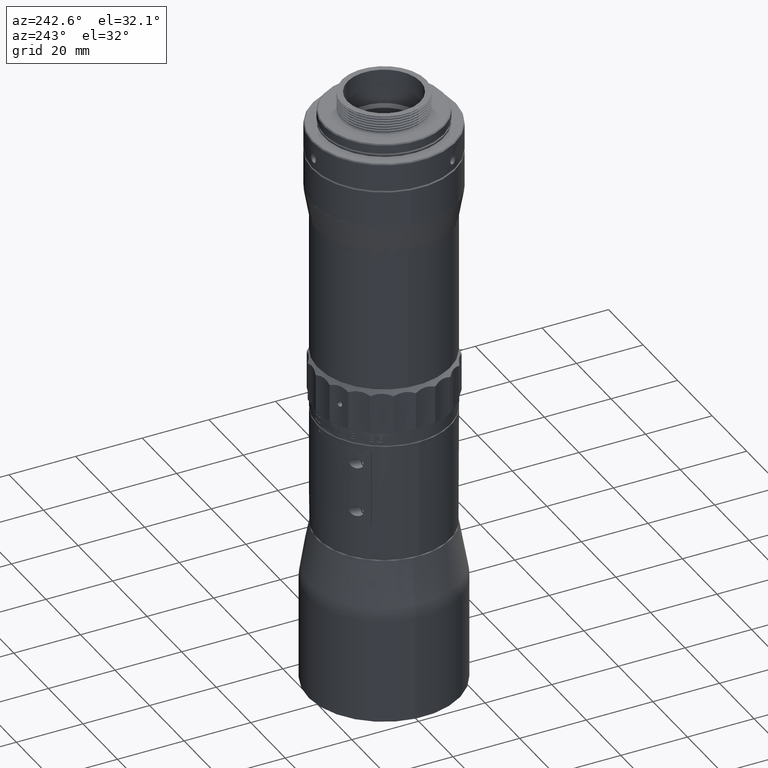
[diagram: clean part render]
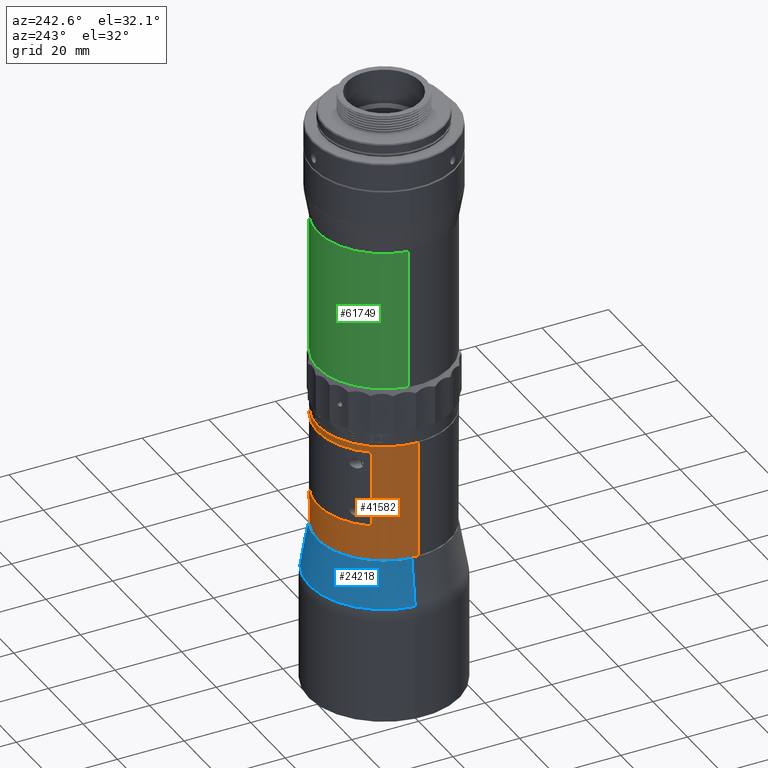
[diagram: same view with three faces highlighted in distinct colors, each labeled with its STEP entity id]
A machine part, auxiliary view with three faces highlighted in distinct colors.
Their STEP definitions:

[orange] entity #41582 — the highlighted cylindrical surface (partial cylindrical patch) has radius 20 mm, axis along (-0, 0, -1).
#59 = CARTESIAN_POINT ( 'NONE',  ( -1.693854720930704900, 19.92835645255080100, -5.111236852984245800 ) ) ;
#332 = VERTEX_POINT ( 'NONE', #14159 ) ;
#541 = CARTESIAN_POINT ( 'NONE',  ( -0.7498242311347396200, 19.98593964309368300, -4.850000012531379100 ) ) ;
#1493 = LINE ( 'NONE', #9531, #23202 ) ;
#1539 = CARTESIAN_POINT ( 'NONE',  ( -16.00000061859313000, 11.99999999999999500, -29.10000000000000900 ) ) ;
#1900 = AXIS2_PLACEMENT_3D ( 'NONE', #44524, #61881, #11641 ) ;
#2197 = EDGE_LOOP ( 'NONE', ( #62819, #57751 ) ) ;
#2491 = ORIENTED_EDGE ( 'NONE', *, *, #37364, .T. ) ;
#2825 = CARTESIAN_POINT ( 'NONE',  ( -0.7499561874927938000, 19.98593469240952200, -4.717937502177353100 ) ) ;
#3497 = CARTESIAN_POINT ( 'NONE',  ( -1.409484263373525200E-015, -6.757842006322049400E-015, -39.60000021226375800 ) ) ;
#4317 = AXIS2_PLACEMENT_3D ( 'NONE', #42693, #48290, #54627 ) ;
#5329 = CARTESIAN_POINT ( 'NONE',  ( -5.099319591400049300E-015, 20.00000049487447400, -4.000000212262516900 ) ) ;
#5958 = VERTEX_POINT ( 'NONE', #1539 ) ;
#6475 = CIRCLE ( 'NONE', #13902, 20.00000049487450900 ) ;
#7788 = ORIENTED_EDGE ( 'NONE', *, *, #41167, .T. ) ;
#8035 = EDGE_CURVE ( 'NONE', #54137, #5958, #40390, .T. ) ;
#8104 = ORIENTED_EDGE ( 'NONE', *, *, #13854, .T. ) ;
#8396 = CARTESIAN_POINT ( 'NONE',  ( -1.694569195880832900, 19.92830022729013000, -4.589388296515989100 ) ) ;
#9531 = CARTESIAN_POINT ( 'NONE',  ( 20.00000049487450900, -2.869408114835106900E-015, -47.03811146431482400 ) ) ;
#10291 = DIRECTION ( 'NONE',  ( 4.135874887446143800E-018, -6.905169299956518100E-018, 1.000000000000000000 ) ) ;
#10583 = DIRECTION ( 'NONE',  ( -4.135874887446143800E-018, 6.905169299956518100E-018, -1.000000000000000000 ) ) ;
#11048 = DIRECTION ( 'NONE',  ( -4.135874887446143800E-018, 6.905169299956518100E-018, -1.000000000000000000 ) ) ;
#11641 = DIRECTION ( 'NONE',  ( -1.000000000000000000, -6.938893903907227100E-017, 0.0000000000000000000 ) ) ;
#11921 = CARTESIAN_POINT ( 'NONE',  ( -1.747899330876771200, 19.92347529276806000, -4.982047906286560100 ) ) ;
#13854 = EDGE_CURVE ( 'NONE', #332, #54137, #42722, .T. ) ;
#13902 = AXIS2_PLACEMENT_3D ( 'NONE', #3497, #64463, #30994 ) ;
#14159 = CARTESIAN_POINT ( 'NONE',  ( 16.00000061859313000, 11.99999999999999800, -5.900000000000011000 ) ) ;
#14174 = LINE ( 'NONE', #26807, #66618 ) ;
#16456 = CARTESIAN_POINT ( 'NONE',  ( -20.00000049487450900, -5.696327162542956800E-015, -39.60000021226375800 ) ) ;
#17716 = EDGE_CURVE ( 'NONE', #34828, #66939, #44841, .T. ) ;
#18023 = CARTESIAN_POINT ( 'NONE',  ( -20.00000049487450600, -8.268532834981542800E-015, -4.000000212262516900 ) ) ;
#18378 = VERTEX_POINT ( 'NONE', #5329 ) ;
#19442 = CARTESIAN_POINT ( 'NONE',  ( -0.7498242311347396200, 19.98593964309368300, -4.850000012531379100 ) ) ;
#19588 = VERTEX_POINT ( 'NONE', #53904 ) ;
#19776 = CARTESIAN_POINT ( 'NONE',  ( -1.747767781886162600, 19.92348683277054300, -4.850000000000010300 ) ) ;
#20221 = EDGE_CURVE ( 'NONE', #5958, #48755, #39292, .T. ) ;
#20887 = VERTEX_POINT ( 'NONE', #43485 ) ;
#21495 = DIRECTION ( 'NONE',  ( -1.000000000000000000, -6.938893903907230800E-017, 0.0000000000000000000 ) ) ;
#23202 = VECTOR ( 'NONE', #25595, 1000.000000000000000 ) ;
#23468 = DIRECTION ( 'NONE',  ( 4.135874887446143800E-018, -6.905169299956518100E-018, 1.000000000000000000 ) ) ;
#23705 = FACE_BOUND ( 'NONE', #32760, .T. ) ;
#23852 = AXIS2_PLACEMENT_3D ( 'NONE', #54057, #71429, #37945 ) ;
#24589 = B_SPLINE_CURVE_WITH_KNOTS ( 'NONE', 3,
 ( #39697, #11921, #59, #28719, #61921, #34063, #33828, #33340, #51148, #541 ),
 .UNSPECIFIED., .F., .F.,
 ( 4, 2, 2, 2, 4 ),
 ( 0.001562280362684583000, 0.001952595708463785100, 0.002342911054242987300, 0.002733226400022189500, 0.003123541745801391600 ),
 .UNSPECIFIED. ) ;
#24702 = CARTESIAN_POINT ( 'NONE',  ( -1.379193945795173200, 19.95281591035591600, -4.349964031905881400 ) ) ;
#25595 = DIRECTION ( 'NONE',  ( -4.135874887446143800E-018, 6.905169299956518100E-018, -1.000000000000000000 ) ) ;
#26807 = CARTESIAN_POINT ( 'NONE',  ( 16.00000061859313400, 11.99999999999999600, -47.03811146431482400 ) ) ;
#28566 = ORIENTED_EDGE ( 'NONE', *, *, #69677, .T. ) ;
#28719 = CARTESIAN_POINT ( 'NONE',  ( -1.509894972231268200, 19.94313796493352700, -5.295791751168656500 ) ) ;
#30772 = CARTESIAN_POINT ( 'NONE',  ( -0.8038845290828606800, 19.98405147426788600, -4.588797971043480800 ) ) ;
#30994 = DIRECTION ( 'NONE',  ( -1.000000000000000000, -6.938893903907230800E-017, 0.0000000000000000000 ) ) ;
#32760 = EDGE_LOOP ( 'NONE', ( #7788, #8104, #45471, #45002 ) ) ;
#33340 = CARTESIAN_POINT ( 'NONE',  ( -0.8031044210231795800, 19.98408764845028100, -5.110513237011595300 ) ) ;
#33828 = CARTESIAN_POINT ( 'NONE',  ( -0.9896364460323023900, 19.97571914992536100, -5.297041730023716300 ) ) ;
#34063 = CARTESIAN_POINT ( 'NONE',  ( -1.119166750739387000, 19.96908899319594300, -5.350043263400346300 ) ) ;
#34828 = VERTEX_POINT ( 'NONE', #19442 ) ;
#35111 = EDGE_CURVE ( 'NONE', #18378, #20887, #71901, .T. ) ;
#36069 = VECTOR ( 'NONE', #11048, 1000.000000000000000 ) ;
#37364 = EDGE_CURVE ( 'NONE', #53339, #18378, #42836, .T. ) ;
#37945 = DIRECTION ( 'NONE',  ( -1.000000000000000000, -6.938893903907227100E-017, 0.0000000000000000000 ) ) ;
#38109 = AXIS2_PLACEMENT_3D ( 'NONE', #38334, #10583, #21495 ) ;
#38334 = CARTESIAN_POINT ( 'NONE',  ( -1.262247117380437400E-015, -7.003666033400510000E-015, -4.000000212262516900 ) ) ;
#39292 = CIRCLE ( 'NONE', #23852, 20.00000049487450900 ) ;
#39374 = FACE_BOUND ( 'NONE', #2197, .T. ) ;
#39538 = CARTESIAN_POINT ( 'NONE',  ( -16.00000061859313000, 11.99999999999999500, -47.03811146431482400 ) ) ;
#39697 = CARTESIAN_POINT ( 'NONE',  ( -1.747767781886162600, 19.92348683277054300, -4.850000000000010300 ) ) ;
#40390 = LINE ( 'NONE', #39538, #36069 ) ;
#40701 = CARTESIAN_POINT ( 'NONE',  ( -1.747767781886162600, 19.92348683277054300, -4.850000000000010300 ) ) ;
#41053 = EDGE_CURVE ( 'NONE', #19588, #70336, #6475, .T. ) ;
#41167 = EDGE_CURVE ( 'NONE', #48755, #332, #14174, .T. ) ;
#41347 = AXIS2_PLACEMENT_3D ( 'NONE', #51730, #23468, #62765 ) ;
#41582 = ADVANCED_FACE ( 'NONE', ( #39374, #23705, #66479 ), #48947, .T. ) ;
#41762 = CARTESIAN_POINT ( 'NONE',  ( -1.118790222222688400, 19.96910982320768100, -4.350036002731930500 ) ) ;
#41823 = CARTESIAN_POINT ( 'NONE',  ( -20.00000049487450900, -8.094259403974986500E-015, -47.03811146431482400 ) ) ;
#42693 = CARTESIAN_POINT ( 'NONE',  ( -1.262247117380437400E-015, -7.003666033400510000E-015, -4.000000212262516900 ) ) ;
#42722 = CIRCLE ( 'NONE', #41347, 20.00000049487450900 ) ;
#42836 = CIRCLE ( 'NONE', #4317, 20.00000049487450900 ) ;
#43485 = CARTESIAN_POINT ( 'NONE',  ( 20.00000049487450600, -3.043681545841662400E-015, -4.000000212262516900 ) ) ;
#44185 = LINE ( 'NONE', #41823, #72197 ) ;
#44524 = CARTESIAN_POINT ( 'NONE',  ( -1.440247360910913800E-015, -6.706480588854724600E-015, -47.03811146431482400 ) ) ;
#44841 = B_SPLINE_CURVE_WITH_KNOTS ( 'NONE', 3,
 ( #52956, #2825, #30772, #58838, #41762, #24702, #70078, #8396, #69835, #19776 ),
 .UNSPECIFIED., .F., .F.,
 ( 4, 2, 2, 2, 4 ),
 ( 0.0000000000000000000, 0.0003905700906711457400, 0.0007811401813422914900, 0.001171710272013437200, 0.001562280362684583000 ),
 .UNSPECIFIED. ) ;
#45002 = ORIENTED_EDGE ( 'NONE', *, *, #20221, .T. ) ;
#45471 = ORIENTED_EDGE ( 'NONE', *, *, #8035, .T. ) ;
#48290 = DIRECTION ( 'NONE',  ( -4.135874887446143800E-018, 6.905169299956518100E-018, -1.000000000000000000 ) ) ;
#48755 = VERTEX_POINT ( 'NONE', #52558 ) ;
#48947 = CYLINDRICAL_SURFACE ( 'NONE', #1900, 20.00000049487450900 ) ;
#50042 = ORIENTED_EDGE ( 'NONE', *, *, #35111, .T. ) ;
#51148 = CARTESIAN_POINT ( 'NONE',  ( -0.7496923608437167100, 19.98594459054881200, -4.981976386617589900 ) ) ;
#51730 = CARTESIAN_POINT ( 'NONE',  ( -1.270105278788693900E-015, -6.990546213196301000E-015, -5.900000000000009200 ) ) ;
#52558 = CARTESIAN_POINT ( 'NONE',  ( 16.00000061859313000, 11.99999999999999800, -29.10000000000000900 ) ) ;
#52956 = CARTESIAN_POINT ( 'NONE',  ( -0.7498242311347396200, 19.98593964309368300, -4.850000012531379100 ) ) ;
#53254 = DIRECTION ( 'NONE',  ( -4.135874887446143800E-018, 6.905169299956518100E-018, -1.000000000000000000 ) ) ;
#53339 = VERTEX_POINT ( 'NONE', #18023 ) ;
#53904 = CARTESIAN_POINT ( 'NONE',  ( 20.00000049487450900, -5.370063191201786700E-015, -39.60000021226375800 ) ) ;
#54057 = CARTESIAN_POINT ( 'NONE',  ( -1.366057576177444500E-015, -6.830346285437309900E-015, -29.10000000000000900 ) ) ;
#54110 = EDGE_CURVE ( 'NONE', #53339, #70336, #44185, .T. ) ;
#54137 = VERTEX_POINT ( 'NONE', #69417 ) ;
#54627 = DIRECTION ( 'NONE',  ( -1.000000000000000000, -6.938893903907230800E-017, 0.0000000000000000000 ) ) ;
#55661 = ORIENTED_EDGE ( 'NONE', *, *, #54110, .F. ) ;
#56411 = EDGE_LOOP ( 'NONE', ( #50042, #28566, #57693, #55661, #2491 ) ) ;
#57693 = ORIENTED_EDGE ( 'NONE', *, *, #41053, .T. ) ;
#57751 = ORIENTED_EDGE ( 'NONE', *, *, #17716, .T. ) ;
#58838 = CARTESIAN_POINT ( 'NONE',  ( -0.9883486731605926100, 19.97577809654855600, -4.404155045146261200 ) ) ;
#61881 = DIRECTION ( 'NONE',  ( -4.135874887446143800E-018, 6.905169299956518100E-018, -1.000000000000000000 ) ) ;
#61921 = CARTESIAN_POINT ( 'NONE',  ( -1.379652297329628600, 19.95278449170975300, -5.349956684417697300 ) ) ;
#62765 = DIRECTION ( 'NONE',  ( -1.000000000000000000, -6.938893903907230800E-017, 0.0000000000000000000 ) ) ;
#62819 = ORIENTED_EDGE ( 'NONE', *, *, #69863, .T. ) ;
#64463 = DIRECTION ( 'NONE',  ( 4.135874887446143800E-018, -6.905169299956518100E-018, 1.000000000000000000 ) ) ;
#66479 = FACE_OUTER_BOUND ( 'NONE', #56411, .T. ) ;
#66618 = VECTOR ( 'NONE', #10291, 1000.000000000000000 ) ;
#66939 = VERTEX_POINT ( 'NONE', #40701 ) ;
#69417 = CARTESIAN_POINT ( 'NONE',  ( -16.00000061859313000, 11.99999999999999500, -5.900000000000007500 ) ) ;
#69677 = EDGE_CURVE ( 'NONE', #20887, #19588, #1493, .T. ) ;
#69835 = CARTESIAN_POINT ( 'NONE',  ( -1.747636147038224200, 19.92349838030477100, -4.717865910759136300 ) ) ;
#69863 = EDGE_CURVE ( 'NONE', #66939, #34828, #24589, .T. ) ;
#70078 = CARTESIAN_POINT ( 'NONE',  ( -1.508675104285780200, 19.94323479624979000, -4.403076250609643700 ) ) ;
#70336 = VERTEX_POINT ( 'NONE', #16456 ) ;
#71429 = DIRECTION ( 'NONE',  ( -4.135874887446143800E-018, 6.905169299956518100E-018, -1.000000000000000000 ) ) ;
#71901 = CIRCLE ( 'NONE', #38109, 20.00000049487450900 ) ;
#72197 = VECTOR ( 'NONE', #53254, 1000.000000000000000 ) ;

[blue] entity #24218 — the highlighted conical surface has half-angle 10 deg.
#285 = EDGE_CURVE ( 'NONE', #22764, #52756, #15898, .T. ) ;
#2787 = DIRECTION ( 'NONE',  ( 0.1728042079939963700, -0.01709957036338140600, -0.9848077530122088000 ) ) ;
#3686 = AXIS2_PLACEMENT_3D ( 'NONE', #69124, #30269, #41280 ) ;
#6852 = CARTESIAN_POINT ( 'NONE',  ( 19.92409916116097400, -1.971558097387873000, -39.92353265560238600 ) ) ;
#7185 = EDGE_CURVE ( 'NONE', #15161, #55353, #53434, .T. ) ;
#7435 = CARTESIAN_POINT ( 'NONE',  ( 22.33705996239634600, -2.210328862774783700, -53.67494838995591500 ) ) ;
#8995 = VECTOR ( 'NONE', #11486, 999.9999999999998900 ) ;
#11051 = ORIENTED_EDGE ( 'NONE', *, *, #7185, .F. ) ;
#11486 = DIRECTION ( 'NONE',  ( -0.1728042079939963700, 0.01709957036338142700, -0.9848077530122088000 ) ) ;
#13776 = FACE_OUTER_BOUND ( 'NONE', #59267, .T. ) ;
#15161 = VERTEX_POINT ( 'NONE', #21081 ) ;
#15674 = CIRCLE ( 'NONE', #3686, 22.44615337747885100 ) ;
#15898 = LINE ( 'NONE', #47101, #28992 ) ;
#18363 = CARTESIAN_POINT ( 'NONE',  ( -1.293462368969014900E-015, -6.939643994514333200E-015, -53.67494838995592200 ) ) ;
#21081 = CARTESIAN_POINT ( 'NONE',  ( -19.92409916116097400, 1.971558097387861300, -39.92353265560238600 ) ) ;
#22764 = VERTEX_POINT ( 'NONE', #6852 ) ;
#24218 = ADVANCED_FACE ( 'NONE', ( #13776 ), #39007, .T. ) ;
#24949 = CIRCLE ( 'NONE', #60016, 20.02140776057346000 ) ;
#26794 = CARTESIAN_POINT ( 'NONE',  ( -1.269723405529065800E-015, -6.941993046544994400E-015, -39.92353265560238600 ) ) ;
#28992 = VECTOR ( 'NONE', #2787, 999.9999999999998900 ) ;
#30269 = DIRECTION ( 'NONE',  ( 1.762893389404781200E-019, 1.939786222132960500E-017, -1.000000000000000000 ) ) ;
#34381 = CARTESIAN_POINT ( 'NONE',  ( -22.33705996239634600, 2.210328862774772100, -53.67494838995591500 ) ) ;
#39007 = CONICAL_SURFACE ( 'NONE', #68684, 22.44615337747884700, 0.1745329251994293700 ) ;
#39906 = EDGE_CURVE ( 'NONE', #15161, #22764, #24949, .T. ) ;
#41280 = DIRECTION ( 'NONE',  ( -0.09847250108308061600, -0.9951397723588595300, 0.0000000000000000000 ) ) ;
#44861 = CARTESIAN_POINT ( 'NONE',  ( -22.33705996239634600, 2.210328862774772100, -53.67494838995592200 ) ) ;
#47101 = CARTESIAN_POINT ( 'NONE',  ( 22.33705996239634600, -2.210328862774783700, -53.67494838995592200 ) ) ;
#50203 = ORIENTED_EDGE ( 'NONE', *, *, #285, .T. ) ;
#51281 = DIRECTION ( 'NONE',  ( -0.9951397723588595300, 0.09847250108308061600, 0.0000000000000000000 ) ) ;
#52756 = VERTEX_POINT ( 'NONE', #7435 ) ;
#52807 = EDGE_CURVE ( 'NONE', #55353, #52756, #15674, .T. ) ;
#53127 = ORIENTED_EDGE ( 'NONE', *, *, #52807, .F. ) ;
#53434 = LINE ( 'NONE', #44861, #8995 ) ;
#55353 = VERTEX_POINT ( 'NONE', #34381 ) ;
#59267 = EDGE_LOOP ( 'NONE', ( #62223, #50203, #53127, #11051 ) ) ;
#60016 = AXIS2_PLACEMENT_3D ( 'NONE', #26794, #65879, #66350 ) ;
#62223 = ORIENTED_EDGE ( 'NONE', *, *, #39906, .T. ) ;
#63507 = DIRECTION ( 'NONE',  ( -1.726292324989129000E-018, 1.708225593669714600E-019, -1.000000000000000000 ) ) ;
#65879 = DIRECTION ( 'NONE',  ( -1.726292324989129000E-018, 1.708225593669714600E-019, -1.000000000000000000 ) ) ;
#66350 = DIRECTION ( 'NONE',  ( -0.9951397723588596400, 0.09847250108308061600, 3.465737268271130800E-016 ) ) ;
#68684 = AXIS2_PLACEMENT_3D ( 'NONE', #18363, #63507, #51281 ) ;
#69124 = CARTESIAN_POINT ( 'NONE',  ( -1.158118760626007700E-015, -5.571893545248774400E-015, -53.67494838995591500 ) ) ;

[green] entity #61749 — the highlighted cylindrical surface (partial cylindrical patch) has radius 20 mm, axis along (0, 0, -1).
#803 = ORIENTED_EDGE ( 'NONE', *, *, #57874, .T. ) ;
#1838 = LINE ( 'NONE', #47266, #28829 ) ;
#1876 = VERTEX_POINT ( 'NONE', #9558 ) ;
#2134 = AXIS2_PLACEMENT_3D ( 'NONE', #53525, #43049, #36717 ) ;
#3854 = CARTESIAN_POINT ( 'NONE',  ( -19.79024498440231000, 2.888978934678416700, 56.79137777852483300 ) ) ;
#9558 = CARTESIAN_POINT ( 'NONE',  ( 19.79024498440206200, -2.888978934678422500, 14.29999929252512200 ) ) ;
#10077 = DIRECTION ( 'NONE',  ( -3.967215546937156200E-018, -2.717644169619216600E-017, 1.000000000000000000 ) ) ;
#12349 = FACE_OUTER_BOUND ( 'NONE', #31835, .T. ) ;
#15275 = VERTEX_POINT ( 'NONE', #55254 ) ;
#19949 = CARTESIAN_POINT ( 'NONE',  ( -19.79024498440231000, 2.888978934678418000, -7.500000550267560400 ) ) ;
#23842 = CARTESIAN_POINT ( 'NONE',  ( -19.79024498440231000, 2.888978934678420300, 14.29999929252512200 ) ) ;
#25811 = DIRECTION ( 'NONE',  ( 3.967215546937156200E-018, 2.717644169619216600E-017, -1.000000000000000000 ) ) ;
#25897 = CIRCLE ( 'NONE', #2134, 19.99999989569178600 ) ;
#28564 = DIRECTION ( 'NONE',  ( 3.967215546937156200E-018, 2.717644169619216600E-017, -1.000000000000000000 ) ) ;
#28829 = VECTOR ( 'NONE', #69260, 1000.000000000000000 ) ;
#30606 = CIRCLE ( 'NONE', #47552, 19.99999989569178600 ) ;
#31835 = EDGE_LOOP ( 'NONE', ( #59779, #47804, #59419, #803 ) ) ;
#33149 = CARTESIAN_POINT ( 'NONE',  ( -1.249000902703301100E-013, 0.0000000000000000000, 14.29999929252512200 ) ) ;
#36717 = DIRECTION ( 'NONE',  ( 0.1444489474872816000, 0.9895122543808221300, -2.775557576038563900E-015 ) ) ;
#37924 = EDGE_CURVE ( 'NONE', #15275, #1876, #1838, .T. ) ;
#43049 = DIRECTION ( 'NONE',  ( -3.969591550021838600E-016, -2.719271792533496800E-015, -1.000000000000000000 ) ) ;
#47266 = CARTESIAN_POINT ( 'NONE',  ( 19.79024498440206200, -2.888978934678420300, -7.500000550267560400 ) ) ;
#47552 = AXIS2_PLACEMENT_3D ( 'NONE', #33149, #10077, #49974 ) ;
#47804 = ORIENTED_EDGE ( 'NONE', *, *, #65899, .T. ) ;
#48078 = CYLINDRICAL_SURFACE ( 'NONE', #56301, 19.99999989569178600 ) ;
#48880 = VERTEX_POINT ( 'NONE', #3854 ) ;
#49974 = DIRECTION ( 'NONE',  ( 0.9895122543808221300, -0.1444489474872816000, 0.0000000000000000000 ) ) ;
#50975 = CARTESIAN_POINT ( 'NONE',  ( -1.249000902703301100E-013, 0.0000000000000000000, -7.500000550267560400 ) ) ;
#53525 = CARTESIAN_POINT ( 'NONE',  ( -1.249000902703301100E-013, 0.0000000000000000000, 56.79137777852483300 ) ) ;
#55254 = CARTESIAN_POINT ( 'NONE',  ( 19.79024498440206200, -2.888978934678421200, 56.79137777852483300 ) ) ;
#55888 = DIRECTION ( 'NONE',  ( 0.9895122543808221300, -0.1444489474872816000, 0.0000000000000000000 ) ) ;
#56301 = AXIS2_PLACEMENT_3D ( 'NONE', #50975, #28564, #55888 ) ;
#57874 = EDGE_CURVE ( 'NONE', #1876, #69984, #30606, .T. ) ;
#58210 = EDGE_CURVE ( 'NONE', #48880, #69984, #62837, .T. ) ;
#59419 = ORIENTED_EDGE ( 'NONE', *, *, #37924, .T. ) ;
#59779 = ORIENTED_EDGE ( 'NONE', *, *, #58210, .F. ) ;
#61749 = ADVANCED_FACE ( 'NONE', ( #12349 ), #48078, .T. ) ;
#62837 = LINE ( 'NONE', #19949, #63672 ) ;
#63672 = VECTOR ( 'NONE', #25811, 1000.000000000000000 ) ;
#65899 = EDGE_CURVE ( 'NONE', #48880, #15275, #25897, .T. ) ;
#69260 = DIRECTION ( 'NONE',  ( 3.967215546937156200E-018, 2.717644169619216600E-017, -1.000000000000000000 ) ) ;
#69984 = VERTEX_POINT ( 'NONE', #23842 ) ;